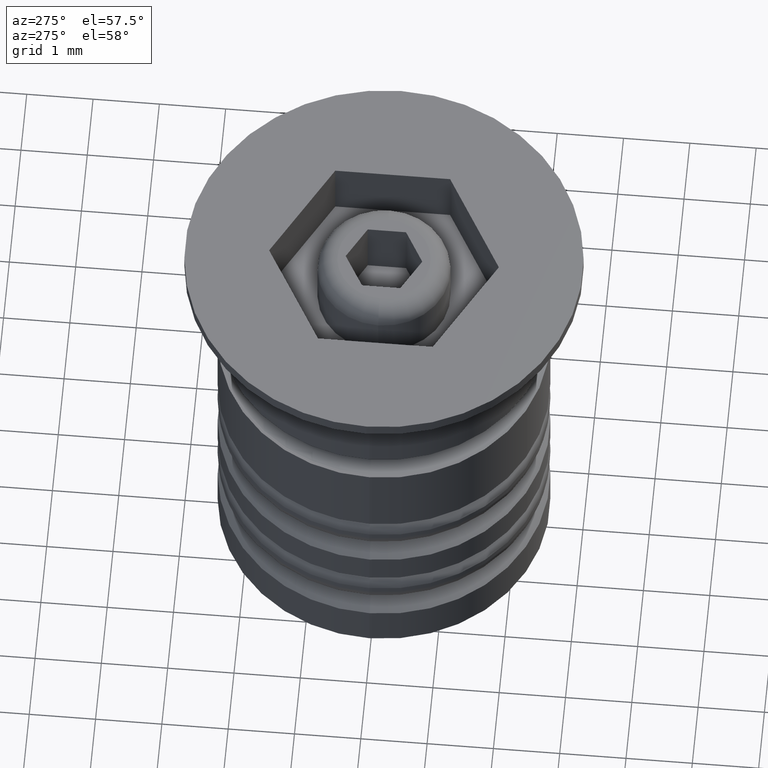
[diagram: clean part render]
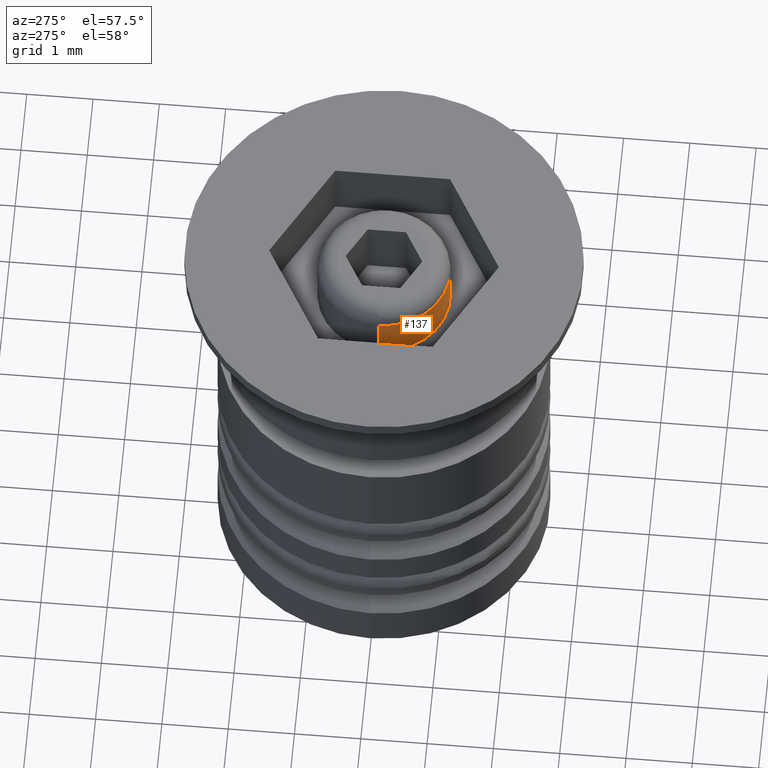
[diagram: same view with one face highlighted and labeled with its STEP entity id]
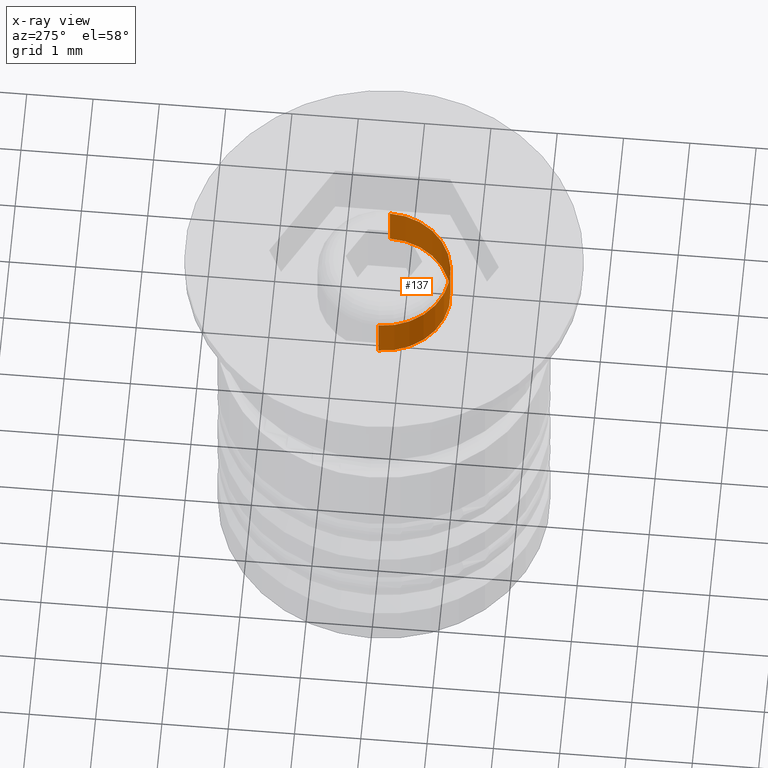
[diagram: x-ray of the same camera — body ghosted, the highlighted face saturated]
A machine part, auxiliary view. The second image highlights one B-rep face of the part: STEP entity #137.
The next image is the same camera in x-ray: the body ghosted, the highlighted face saturated — about 0% of this face is hidden behind the body in this view.
In plain terms, the highlighted cylindrical surface (partial cylindrical patch) has radius 1 mm, axis along (-0, -0, -1).
Its self-contained STEP definition (entity closure, byte-faithful):
#86 = AXIS2_PLACEMENT_3D ( 'NONE', #1716, #341, #1445 ) ;
#122 = DIRECTION ( 'NONE',  ( -0.000000000000000000, -0.000000000000000000, -1.000000000000000000 ) ) ;
#129 = DIRECTION ( 'NONE',  ( 1.000000000000000000, 0.000000000000000000, 0.000000000000000000 ) ) ;
#137 = ADVANCED_FACE ( 'NONE', ( #894 ), #1170, .T. ) ;
#145 = DIRECTION ( 'NONE',  ( 0.000000000000000000, 0.000000000000000000, 1.000000000000000000 ) ) ;
#153 = VERTEX_POINT ( 'NONE', #1030 ) ;
#229 = CARTESIAN_POINT ( 'NONE',  ( 1.000000000000000666, 1.224646799147353947E-16, -0.3000000000000003775 ) ) ;
#298 = ORIENTED_EDGE ( 'NONE', *, *, #1657, .T. ) ;
#341 = DIRECTION ( 'NONE',  ( 0.000000000000000000, 0.000000000000000000, -1.000000000000000000 ) ) ;
#352 = CARTESIAN_POINT ( 'NONE',  ( -1.000000000000000666, 0.000000000000000000, 2.828427124746192067 ) ) ;
#446 = EDGE_CURVE ( 'NONE', #1442, #560, #549, .T. ) ;
#549 = CIRCLE ( 'NONE', #960, 1.000000000000000666 ) ;
#560 = VERTEX_POINT ( 'NONE', #1145 ) ;
#575 = VERTEX_POINT ( 'NONE', #229 ) ;
#617 = ORIENTED_EDGE ( 'NONE', *, *, #1397, .F. ) ;
#687 = ORIENTED_EDGE ( 'NONE', *, *, #1512, .T. ) ;
#730 = DIRECTION ( 'NONE',  ( -0.000000000000000000, -0.000000000000000000, -1.000000000000000000 ) ) ;
#894 = FACE_OUTER_BOUND ( 'NONE', #931, .T. ) ;
#927 = CARTESIAN_POINT ( 'NONE',  ( 1.000000000000000666, 1.224646799147353947E-16, 2.828427124746192067 ) ) ;
#931 = EDGE_LOOP ( 'NONE', ( #617, #687, #298, #1789 ) ) ;
#954 = LINE ( 'NONE', #927, #1591 ) ;
#960 = AXIS2_PLACEMENT_3D ( 'NONE', #981, #145, #129 ) ;
#981 = CARTESIAN_POINT ( 'NONE',  ( 0.000000000000000000, 0.000000000000000000, -1.000000000000000000 ) ) ;
#993 = VECTOR ( 'NONE', #1524, 1000.000000000000000 ) ;
#1030 = CARTESIAN_POINT ( 'NONE',  ( -1.000000000000000666, 0.000000000000000000, -0.3000000000000003775 ) ) ;
#1145 = CARTESIAN_POINT ( 'NONE',  ( 1.000000000000000666, 1.224646799147353947E-16, -1.000000000000000000 ) ) ;
#1170 = CYLINDRICAL_SURFACE ( 'NONE', #1762, 1.000000000000000666 ) ;
#1300 = CARTESIAN_POINT ( 'NONE',  ( 0.000000000000000000, 0.000000000000000000, 2.828427124746192067 ) ) ;
#1397 = EDGE_CURVE ( 'NONE', #575, #560, #954, .T. ) ;
#1442 = VERTEX_POINT ( 'NONE', #1630 ) ;
#1445 = DIRECTION ( 'NONE',  ( 1.000000000000000000, 0.000000000000000000, 0.000000000000000000 ) ) ;
#1510 = LINE ( 'NONE', #352, #993 ) ;
#1512 = EDGE_CURVE ( 'NONE', #575, #153, #1653, .T. ) ;
#1524 = DIRECTION ( 'NONE',  ( -0.000000000000000000, -0.000000000000000000, -1.000000000000000000 ) ) ;
#1591 = VECTOR ( 'NONE', #122, 1000.000000000000000 ) ;
#1630 = CARTESIAN_POINT ( 'NONE',  ( -1.000000000000000666, 0.000000000000000000, -1.000000000000000000 ) ) ;
#1653 = CIRCLE ( 'NONE', #86, 1.000000000000000666 ) ;
#1657 = EDGE_CURVE ( 'NONE', #153, #1442, #1510, .T. ) ;
#1716 = CARTESIAN_POINT ( 'NONE',  ( 0.000000000000000000, 0.000000000000000000, -0.3000000000000003775 ) ) ;
#1743 = DIRECTION ( 'NONE',  ( -1.000000000000000000, 0.000000000000000000, 0.000000000000000000 ) ) ;
#1762 = AXIS2_PLACEMENT_3D ( 'NONE', #1300, #730, #1743 ) ;
#1789 = ORIENTED_EDGE ( 'NONE', *, *, #446, .T. ) ;